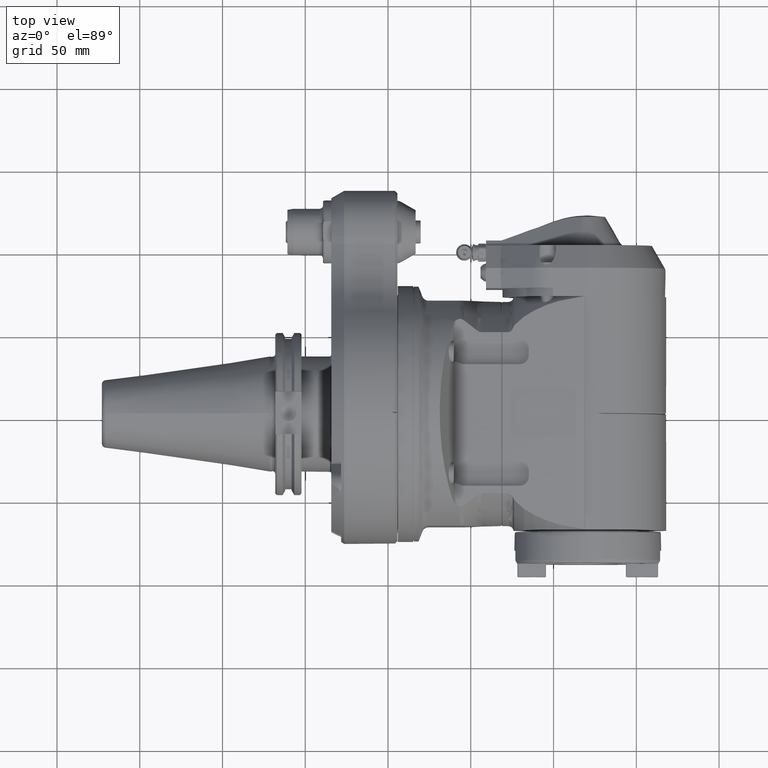
[diagram: clean part render]
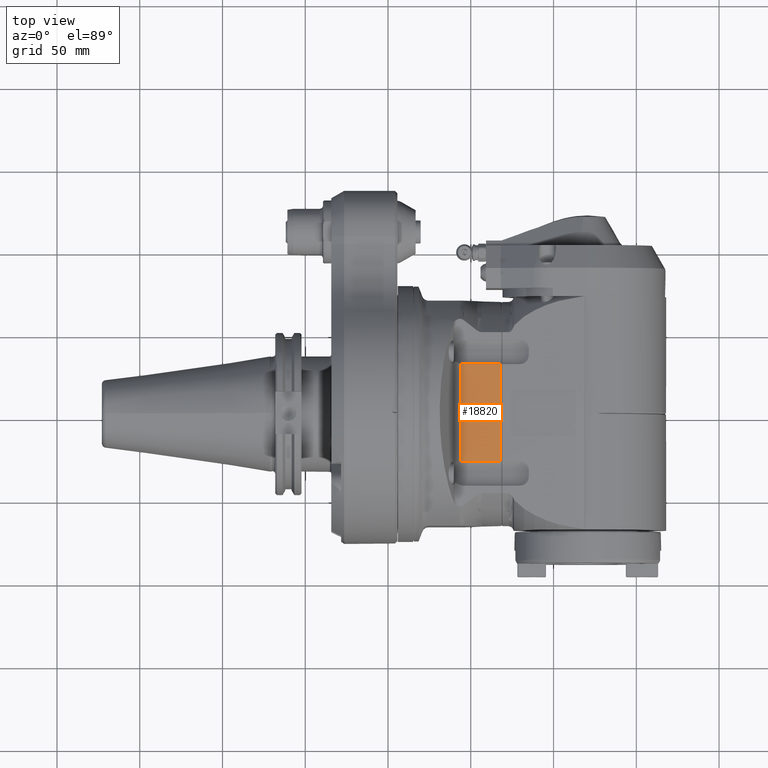
[diagram: same view with one face highlighted and labeled with its STEP entity id]
A machine part, top view. The second image highlights one B-rep face of the part: STEP entity #18820.
In plain terms, the highlighted planar face has unit normal (0, -0, -1).
Its self-contained STEP definition (entity closure, byte-faithful):
#1200=PLANE('',#20371);
#1983=FACE_OUTER_BOUND('',#3116,.T.);
#3116=EDGE_LOOP('',(#14773,#14774,#14775,#14776,#14777,#14778));
#4267=LINE('',#30986,#5727);
#4269=LINE('',#30993,#5729);
#4270=LINE('',#30997,#5730);
#4271=LINE('',#30998,#5731);
#5727=VECTOR('',#23788,22.5);
#5729=VECTOR('',#23794,59.46724184205);
#5730=VECTOR('',#23797,22.49999999982);
#5731=VECTOR('',#23798,58.69397595347);
#7077=CIRCLE('',#20372,5.361902647382);
#7078=CIRCLE('',#20373,5.361902647382);
#8379=VERTEX_POINT('',#30979);
#8380=VERTEX_POINT('',#30985);
#8382=VERTEX_POINT('',#30991);
#8383=VERTEX_POINT('',#30992);
#8384=VERTEX_POINT('',#30994);
#8385=VERTEX_POINT('',#30996);
#10734=EDGE_CURVE('',#8380,#8379,#4267,.T.);
#10737=EDGE_CURVE('',#8382,#8383,#4269,.T.);
#10738=EDGE_CURVE('',#8384,#8382,#7077,.T.);
#10739=EDGE_CURVE('',#8385,#8384,#4270,.T.);
#10740=EDGE_CURVE('',#8385,#8379,#4271,.T.);
#10741=EDGE_CURVE('',#8380,#8383,#7078,.T.);
#14773=ORIENTED_EDGE('',*,*,#10737,.F.);
#14774=ORIENTED_EDGE('',*,*,#10738,.F.);
#14775=ORIENTED_EDGE('',*,*,#10739,.F.);
#14776=ORIENTED_EDGE('',*,*,#10740,.T.);
#14777=ORIENTED_EDGE('',*,*,#10734,.F.);
#14778=ORIENTED_EDGE('',*,*,#10741,.T.);
#18820=ADVANCED_FACE('',(#1983),#1200,.F.);
#20371=AXIS2_PLACEMENT_3D('',#30990,#23792,#23793);
#20372=AXIS2_PLACEMENT_3D('',#30995,#23795,#23796);
#20373=AXIS2_PLACEMENT_3D('',#30999,#23799,#23800);
#23788=DIRECTION('',(0.999999999999998,-5.78813983212199E-8,2.381612015749E-8));
#23792=DIRECTION('center_axis',(0.,0.,-1.));
#23793=DIRECTION('ref_axis',(-1.,0.,0.));
#23794=DIRECTION('',(0.,1.,0.));
#23795=DIRECTION('center_axis',(0.,0.,1.));
#23796=DIRECTION('ref_axis',(9.791011415933E-11,1.,0.));
#23797=DIRECTION('',(-0.999999999999998,-5.78821353913299E-8,-2.381652658812E-8));
#23798=DIRECTION('',(0.,1.,-1.562870221287E-13));
#23799=DIRECTION('center_axis',(0.,0.,-1.));
#23800=DIRECTION('ref_axis',(3.949003724637E-13,-1.,0.));
#30979=CARTESIAN_POINT('',(40.4999999726852,29.3469887109007,47.5000004198541));
#30985=CARTESIAN_POINT('',(18.,29.34698927909,47.5));
#30986=CARTESIAN_POINT('',(18.,29.34698927909,47.5));
#30990=CARTESIAN_POINT('Origin',(39.5,92.4000024,47.5));
#30991=CARTESIAN_POINT('',(16.00083056686,-29.73362092102,47.5));
#30992=CARTESIAN_POINT('',(16.00083056686,29.73362092102,47.5));
#30993=CARTESIAN_POINT('',(16.00083056686,-29.73362092102,47.5));
#30994=CARTESIAN_POINT('',(18.00000000052,-29.34698927909,47.5));
#30995=CARTESIAN_POINT('Origin',(18.,-34.70889192647,47.5));
#30996=CARTESIAN_POINT('',(40.4999999726859,-29.3469887108818,47.5000004198611));
#30997=CARTESIAN_POINT('',(40.5,-29.34698797671,47.50000053587));
#30998=CARTESIAN_POINT('',(40.5,-29.34698797671,47.50000053587));
#30999=CARTESIAN_POINT('Origin',(18.,34.70889192647,47.5));